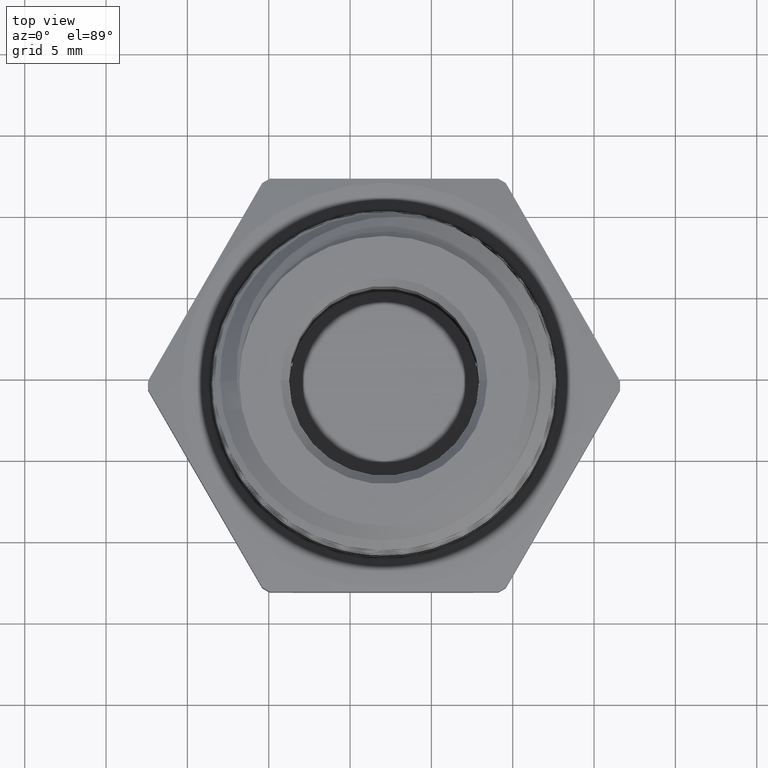
[diagram: clean part render]
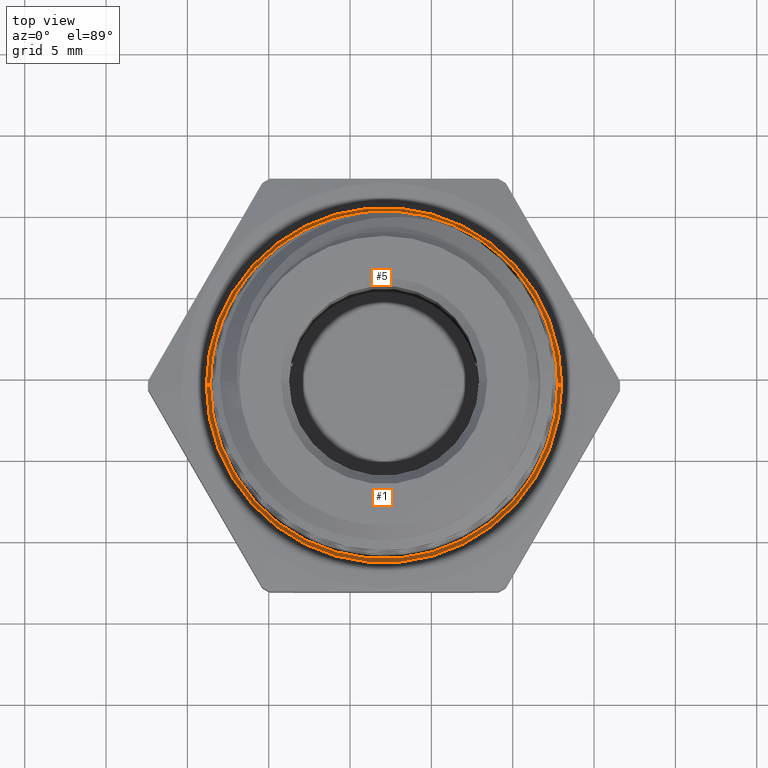
[diagram: same view with one multi-face feature highlighted, each face labeled with its STEP entity id]
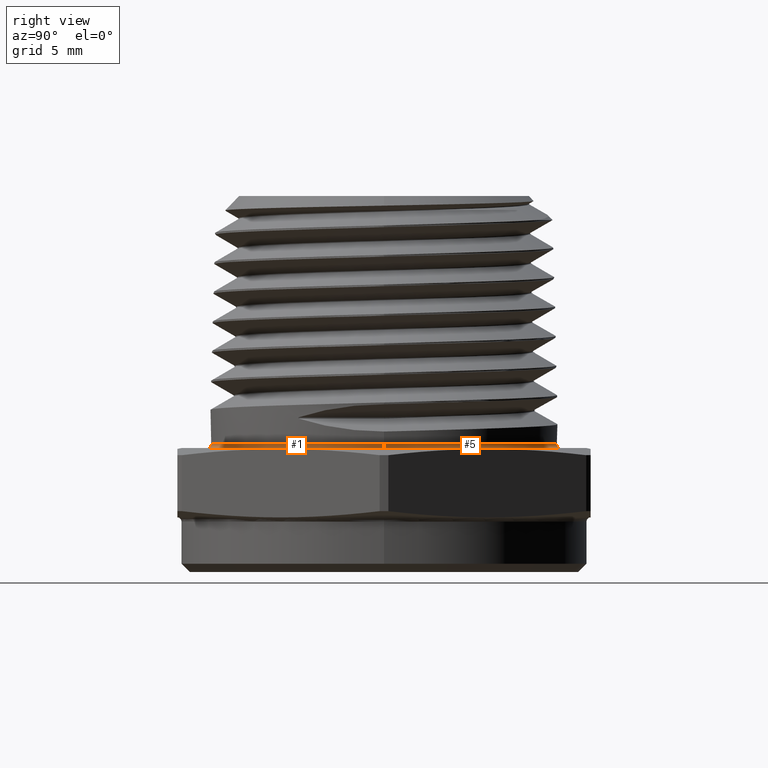
[diagram: same view with one multi-face feature highlighted, each face labeled with its STEP entity id]
A machine part, top view. The highlighted faces form ONE feature: a constant-radius fillet chain: 2 tangent blend faces with common blend radius 0.254 mm. The faces share edges in the B-rep.
A second angle (right view) of the same feature is appended — it is thin or edge-on in the first view.
Their STEP definitions:
[1] entity #1 (Torus):
#1 = ADVANCED_FACE ( 'NONE', ( #2594 ), #2595, .F. ) ;
#220 = VERTEX_POINT ( 'NONE', #4870 ) ;
#221 = VERTEX_POINT ( 'NONE', #4875 ) ;
#223 = VERTEX_POINT ( 'NONE', #4877 ) ;
#226 = VERTEX_POINT ( 'NONE', #4880 ) ;
#294 = EDGE_LOOP ( 'NONE', ( #2576, #2577, #2578, #2579 ) ) ;
#2080 = CARTESIAN_POINT ( 'NONE',  ( 0.0000000000000000000, 0.0000000000000000000, 0.1799999999999999900 ) ) ;
#2081 = DIRECTION ( 'NONE',  ( -0.0000000000000000000, 0.0000000000000000000, 1.000000000000000000 ) ) ;
#2082 = DIRECTION ( 'NONE',  ( 1.000000000000000000, 0.0000000000000000000, 0.0000000000000000000 ) ) ;
#2083 = CARTESIAN_POINT ( 'NONE',  ( -0.4299999999999999900, 5.265981236333618200E-017, 0.1799999999999999900 ) ) ;
#2084 = DIRECTION ( 'NONE',  ( 1.224646799147353200E-016, 1.000000000000000000, 0.0000000000000000000 ) ) ;
#2085 = DIRECTION ( 'NONE',  ( -1.000000000000000000, 1.224646799147346800E-016, 0.0000000000000000000 ) ) ;
#2086 = CARTESIAN_POINT ( 'NONE',  ( 0.0000000000000000000, 0.0000000000000000000, 0.1699999999999999800 ) ) ;
#2087 = DIRECTION ( 'NONE',  ( 0.0000000000000000000, -0.0000000000000000000, -1.000000000000000000 ) ) ;
#2088 = DIRECTION ( 'NONE',  ( 1.000000000000000000, 0.0000000000000000000, 0.0000000000000000000 ) ) ;
#2089 = CARTESIAN_POINT ( 'NONE',  ( 0.4299999999999999900, 0.0000000000000000000, 0.1799999999999999900 ) ) ;
#2090 = DIRECTION ( 'NONE',  ( 0.0000000000000000000, -1.000000000000000000, 0.0000000000000000000 ) ) ;
#2091 = DIRECTION ( 'NONE',  ( 0.0000000000000000000, 0.0000000000000000000, -1.000000000000000000 ) ) ;
#2576 = ORIENTED_EDGE ( 'NONE', *, *, #3155, .F. ) ;
#2577 = ORIENTED_EDGE ( 'NONE', *, *, #3156, .T. ) ;
#2578 = ORIENTED_EDGE ( 'NONE', *, *, #3157, .F. ) ;
#2579 = ORIENTED_EDGE ( 'NONE', *, *, #3158, .F. ) ;
#2594 = FACE_OUTER_BOUND ( 'NONE', #294, .T. ) ;
#2595 = TOROIDAL_SURFACE ( 'NONE', #3209, 0.4299999999999999900, 0.01000000000000000000 ) ;
#2727 = CIRCLE ( 'NONE', #3074, 0.4199999999999999800 ) ;
#2728 = CIRCLE ( 'NONE', #3076, 0.4299999999999999900 ) ;
#2730 = CIRCLE ( 'NONE', #3075, 0.01000000000000003000 ) ;
#2732 = CIRCLE ( 'NONE', #3077, 0.009999999999999995000 ) ;
#3074 = AXIS2_PLACEMENT_3D ( 'NONE', #2080, #2081, #2082 ) ;
#3075 = AXIS2_PLACEMENT_3D ( 'NONE', #2083, #2084, #2085 ) ;
#3076 = AXIS2_PLACEMENT_3D ( 'NONE', #2086, #2087, #2088 ) ;
#3077 = AXIS2_PLACEMENT_3D ( 'NONE', #2089, #2090, #2091 ) ;
#3155 = EDGE_CURVE ( 'NONE', #226, #223, #2727, .T. ) ;
#3156 = EDGE_CURVE ( 'NONE', #226, #220, #2730, .T. ) ;
#3157 = EDGE_CURVE ( 'NONE', #221, #220, #2728, .T. ) ;
#3158 = EDGE_CURVE ( 'NONE', #223, #221, #2732, .T. ) ;
#3209 = AXIS2_PLACEMENT_3D ( 'NONE', #5384, #5184, #5385 ) ;
#4870 = CARTESIAN_POINT ( 'NONE',  ( -0.4299999999999999900, 5.265981236333618200E-017, 0.1699999999999999800 ) ) ;
#4875 = CARTESIAN_POINT ( 'NONE',  ( 0.4299999999999999900, 0.0000000000000000000, 0.1699999999999999800 ) ) ;
#4877 = CARTESIAN_POINT ( 'NONE',  ( 0.4199999999999999800, 5.143516556418883200E-017, 0.1799999999999999900 ) ) ;
#4880 = CARTESIAN_POINT ( 'NONE',  ( -0.4199999999999999800, 0.0000000000000000000, 0.1799999999999999900 ) ) ;
#5184 = DIRECTION ( 'NONE',  ( -0.0000000000000000000, 0.0000000000000000000, 1.000000000000000000 ) ) ;
#5384 = CARTESIAN_POINT ( 'NONE',  ( 0.0000000000000000000, 0.0000000000000000000, 0.1799999999999999900 ) ) ;
#5385 = DIRECTION ( 'NONE',  ( 1.000000000000000000, 0.0000000000000000000, 0.0000000000000000000 ) ) ;
[2] entity #5 (Torus):
#5 = ADVANCED_FACE ( 'NONE', ( #2605 ), #2604, .F. ) ;
#220 = VERTEX_POINT ( 'NONE', #4870 ) ;
#221 = VERTEX_POINT ( 'NONE', #4875 ) ;
#223 = VERTEX_POINT ( 'NONE', #4877 ) ;
#226 = VERTEX_POINT ( 'NONE', #4880 ) ;
#251 = EDGE_LOOP ( 'NONE', ( #3606, #3607, #3608, #3609 ) ) ;
#1446 = CARTESIAN_POINT ( 'NONE',  ( 0.0000000000000000000, 0.0000000000000000000, 0.1699999999999999800 ) ) ;
#1447 = DIRECTION ( 'NONE',  ( 0.0000000000000000000, -0.0000000000000000000, -1.000000000000000000 ) ) ;
#1448 = DIRECTION ( 'NONE',  ( 1.000000000000000000, 0.0000000000000000000, 0.0000000000000000000 ) ) ;
#2083 = CARTESIAN_POINT ( 'NONE',  ( -0.4299999999999999900, 5.265981236333618200E-017, 0.1799999999999999900 ) ) ;
#2084 = DIRECTION ( 'NONE',  ( 1.224646799147353200E-016, 1.000000000000000000, 0.0000000000000000000 ) ) ;
#2085 = DIRECTION ( 'NONE',  ( -1.000000000000000000, 1.224646799147346800E-016, 0.0000000000000000000 ) ) ;
#2089 = CARTESIAN_POINT ( 'NONE',  ( 0.4299999999999999900, 0.0000000000000000000, 0.1799999999999999900 ) ) ;
#2090 = DIRECTION ( 'NONE',  ( 0.0000000000000000000, -1.000000000000000000, 0.0000000000000000000 ) ) ;
#2091 = DIRECTION ( 'NONE',  ( 0.0000000000000000000, 0.0000000000000000000, -1.000000000000000000 ) ) ;
#2401 = CARTESIAN_POINT ( 'NONE',  ( 0.0000000000000000000, 0.0000000000000000000, 0.1799999999999999900 ) ) ;
#2402 = DIRECTION ( 'NONE',  ( -0.0000000000000000000, 0.0000000000000000000, 1.000000000000000000 ) ) ;
#2403 = DIRECTION ( 'NONE',  ( 1.000000000000000000, 0.0000000000000000000, 0.0000000000000000000 ) ) ;
#2604 = TOROIDAL_SURFACE ( 'NONE', #3213, 0.4299999999999999900, 0.01000000000000000000 ) ;
#2605 = FACE_OUTER_BOUND ( 'NONE', #251, .T. ) ;
#2667 = CIRCLE ( 'NONE', #3057, 0.4299999999999999900 ) ;
#2730 = CIRCLE ( 'NONE', #3075, 0.01000000000000003000 ) ;
#2732 = CIRCLE ( 'NONE', #3077, 0.009999999999999995000 ) ;
#2775 = CIRCLE ( 'NONE', #3098, 0.4199999999999999800 ) ;
#3057 = AXIS2_PLACEMENT_3D ( 'NONE', #1446, #1447, #1448 ) ;
#3075 = AXIS2_PLACEMENT_3D ( 'NONE', #2083, #2084, #2085 ) ;
#3077 = AXIS2_PLACEMENT_3D ( 'NONE', #2089, #2090, #2091 ) ;
#3098 = AXIS2_PLACEMENT_3D ( 'NONE', #2401, #2402, #2403 ) ;
#3108 = EDGE_CURVE ( 'NONE', #220, #221, #2667, .T. ) ;
#3156 = EDGE_CURVE ( 'NONE', #226, #220, #2730, .T. ) ;
#3158 = EDGE_CURVE ( 'NONE', #223, #221, #2732, .T. ) ;
#3206 = EDGE_CURVE ( 'NONE', #223, #226, #2775, .T. ) ;
#3213 = AXIS2_PLACEMENT_3D ( 'NONE', #5187, #5238, #3468 ) ;
#3468 = DIRECTION ( 'NONE',  ( 1.000000000000000000, 0.0000000000000000000, 0.0000000000000000000 ) ) ;
#3606 = ORIENTED_EDGE ( 'NONE', *, *, #3156, .F. ) ;
#3607 = ORIENTED_EDGE ( 'NONE', *, *, #3206, .F. ) ;
#3608 = ORIENTED_EDGE ( 'NONE', *, *, #3158, .T. ) ;
#3609 = ORIENTED_EDGE ( 'NONE', *, *, #3108, .F. ) ;
#4870 = CARTESIAN_POINT ( 'NONE',  ( -0.4299999999999999900, 5.265981236333618200E-017, 0.1699999999999999800 ) ) ;
#4875 = CARTESIAN_POINT ( 'NONE',  ( 0.4299999999999999900, 0.0000000000000000000, 0.1699999999999999800 ) ) ;
#4877 = CARTESIAN_POINT ( 'NONE',  ( 0.4199999999999999800, 5.143516556418883200E-017, 0.1799999999999999900 ) ) ;
#4880 = CARTESIAN_POINT ( 'NONE',  ( -0.4199999999999999800, 0.0000000000000000000, 0.1799999999999999900 ) ) ;
#5187 = CARTESIAN_POINT ( 'NONE',  ( 0.0000000000000000000, 0.0000000000000000000, 0.1799999999999999900 ) ) ;
#5238 = DIRECTION ( 'NONE',  ( -0.0000000000000000000, 0.0000000000000000000, 1.000000000000000000 ) ) ;